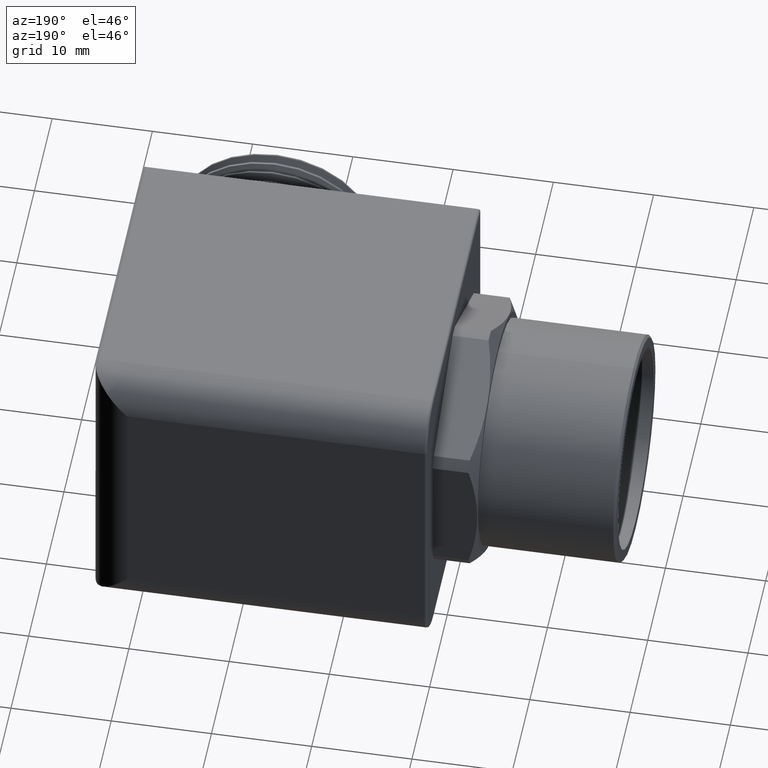
[diagram: clean part render]
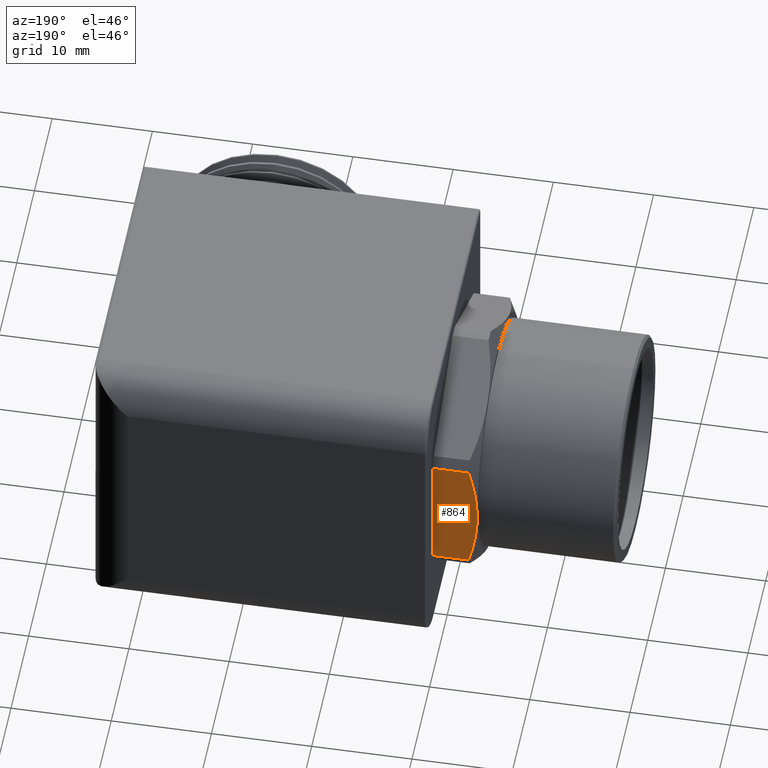
[diagram: same view with one face highlighted and labeled with its STEP entity id]
A machine part, auxiliary view. The second image highlights one B-rep face of the part: STEP entity #864.
In plain terms, the highlighted planar face has unit normal (0, -1, 0).
Its self-contained STEP definition (entity closure, byte-faithful):
#32 = VERTEX_POINT ( 'NONE', #1128 ) ;
#43 = VERTEX_POINT ( 'NONE', #1169 ) ;
#44 = EDGE_CURVE ( 'NONE', #43, #75, #1168, .T. ) ;
#75 = VERTEX_POINT ( 'NONE', #1228 ) ;
#398 = VERTEX_POINT ( 'NONE', #1829 ) ;
#400 = EDGE_CURVE ( 'NONE', #398, #32, #1828, .T. ) ;
#846 = VERTEX_POINT ( 'NONE', #2692 ) ;
#864 = ADVANCED_FACE ( 'NONE', ( #2724 ), #2721, .F. ) ;
#865 = EDGE_LOOP ( 'NONE', ( #866, #868, #922, #924, #925 ) ) ;
#866 = ORIENTED_EDGE ( 'NONE', *, *, #867, .F. ) ;
#867 = EDGE_CURVE ( 'NONE', #32, #846, #2763, .T. ) ;
#868 = ORIENTED_EDGE ( 'NONE', *, *, #400, .F. ) ;
#922 = ORIENTED_EDGE ( 'NONE', *, *, #923, .T. ) ;
#923 = EDGE_CURVE ( 'NONE', #398, #43, #2868, .T. ) ;
#924 = ORIENTED_EDGE ( 'NONE', *, *, #44, .T. ) ;
#925 = ORIENTED_EDGE ( 'NONE', *, *, #926, .F. ) ;
#926 = EDGE_CURVE ( 'NONE', #846, #75, #2864, .T. ) ;
#1128 = CARTESIAN_POINT ( 'NONE',  ( -0.4910806716851094900, 0.4700000000000004700, 0.2422324555050365000 ) ) ;
#1165 = DIRECTION ( 'NONE',  ( -1.000000000000000000, 0.0000000000000000000, 0.0000000000000000000 ) ) ;
#1166 = VECTOR ( 'NONE', #1165, 39.37007874015748100 ) ;
#1167 = CARTESIAN_POINT ( 'NONE',  ( 1.160486150631643500, 0.4700000000000005300, -0.2422324555050364700 ) ) ;
#1168 = LINE ( 'NONE', #1167, #1166 ) ;
#1169 = CARTESIAN_POINT ( 'NONE',  ( -0.3499999999999999800, 0.4700000000000004700, -0.2422324555050365500 ) ) ;
#1228 = CARTESIAN_POINT ( 'NONE',  ( -0.4910806716851094900, 0.4700000000000005300, -0.2422324555050364700 ) ) ;
#1825 = DIRECTION ( 'NONE',  ( -1.000000000000000000, 0.0000000000000000000, 0.0000000000000000000 ) ) ;
#1826 = VECTOR ( 'NONE', #1825, 39.37007874015748100 ) ;
#1827 = CARTESIAN_POINT ( 'NONE',  ( 1.160486150631643500, 0.4700000000000004700, 0.2422324555050365000 ) ) ;
#1828 = LINE ( 'NONE', #1827, #1826 ) ;
#1829 = CARTESIAN_POINT ( 'NONE',  ( -0.3499999999999999800, 0.4700000000000004700, 0.2422324555050365000 ) ) ;
#2692 = CARTESIAN_POINT ( 'NONE',  ( -0.5249999999999999100, 0.4700000000000004700, 0.0000000000000000000 ) ) ;
#2710 = DIRECTION ( 'NONE',  ( 0.0000000000000000000, 0.0000000000000000000, -1.000000000000000000 ) ) ;
#2711 = DIRECTION ( 'NONE',  ( 0.0000000000000000000, -1.000000000000000000, 0.0000000000000000000 ) ) ;
#2720 = CARTESIAN_POINT ( 'NONE',  ( 1.160486150631643500, 0.4700000000000004700, -0.2422324555050365000 ) ) ;
#2721 = PLANE ( 'NONE',  #2723 ) ;
#2723 = AXIS2_PLACEMENT_3D ( 'NONE', #2720, #2711, #2710 ) ;
#2724 = FACE_OUTER_BOUND ( 'NONE', #865, .T. ) ;
#2754 = CARTESIAN_POINT ( 'NONE',  ( -0.5249999999999999100, 0.4700000000000004700, 0.0000000000000000000 ) ) ;
#2755 = CARTESIAN_POINT ( 'NONE',  ( -0.5249999999999994700, 0.4700000000000005300, 0.02039643440592516300 ) ) ;
#2756 = CARTESIAN_POINT ( 'NONE',  ( -0.5242302087654923100, 0.4700000000000005300, 0.04084480894746867600 ) ) ;
#2757 = CARTESIAN_POINT ( 'NONE',  ( -0.5211666293062977600, 0.4700000000000005300, 0.08184438670254314000 ) ) ;
#2758 = CARTESIAN_POINT ( 'NONE',  ( -0.5188680914163583700, 0.4700000000000005300, 0.1023753992933498500 ) ) ;
#2759 = CARTESIAN_POINT ( 'NONE',  ( -0.5100072812899324500, 0.4700000000000003600, 0.1631624035164031500 ) ) ;
#2760 = CARTESIAN_POINT ( 'NONE',  ( -0.5014694581922561900, 0.4700000000000003600, 0.2029549862284593100 ) ) ;
#2761 = CARTESIAN_POINT ( 'NONE',  ( -0.4910806716851094900, 0.4700000000000004700, 0.2422324555050365000 ) ) ;
#2763 = B_SPLINE_CURVE_WITH_KNOTS ( 'NONE', 3,
 ( #2761, #2760, #2759, #2758, #2757, #2756, #2755, #2754 ),
 .UNSPECIFIED., .F., .F.,
 ( 4, 2, 2, 4 ),
 ( 0.006115453213541605300, 0.009211062530443034000, 0.01075886718889374800, 0.01230667184734446200 ),
 .UNSPECIFIED. ) ;
#2854 = CARTESIAN_POINT ( 'NONE',  ( -0.4910806716851094900, 0.4700000000000005300, -0.2422324555050364700 ) ) ;
#2855 = CARTESIAN_POINT ( 'NONE',  ( -0.5015546330232915100, 0.4700000000000005300, -0.2026329609556580800 ) ) ;
#2856 = CARTESIAN_POINT ( 'NONE',  ( -0.5101824244952599700, 0.4700000000000003600, -0.1622149413236405000 ) ) ;
#2857 = CARTESIAN_POINT ( 'NONE',  ( -0.5218882123429596800, 0.4700000000000005300, -0.08139740221429687900 ) ) ;
#2858 = CARTESIAN_POINT ( 'NONE',  ( -0.5249999999999994700, 0.4700000000000003100, -0.04080368195499199700 ) ) ;
#2859 = CARTESIAN_POINT ( 'NONE',  ( -0.5249999999999999100, 0.4700000000000004700, 0.0000000000000000000 ) ) ;
#2864 = B_SPLINE_CURVE_WITH_KNOTS ( 'NONE', 3,
 ( #2859, #2858, #2857, #2856, #2855, #2854 ),
 .UNSPECIFIED., .F., .F.,
 ( 4, 2, 4 ),
 ( 0.01230667184734446200, 0.01540310173087014500, 0.01849953161439582900 ),
 .UNSPECIFIED. ) ;
#2865 = DIRECTION ( 'NONE',  ( 0.0000000000000000000, 0.0000000000000000000, -1.000000000000000000 ) ) ;
#2866 = VECTOR ( 'NONE', #2865, 39.37007874015748100 ) ;
#2867 = CARTESIAN_POINT ( 'NONE',  ( -0.3499999999999999800, 0.4700000000000004700, -0.2422324555050365000 ) ) ;
#2868 = LINE ( 'NONE', #2867, #2866 ) ;